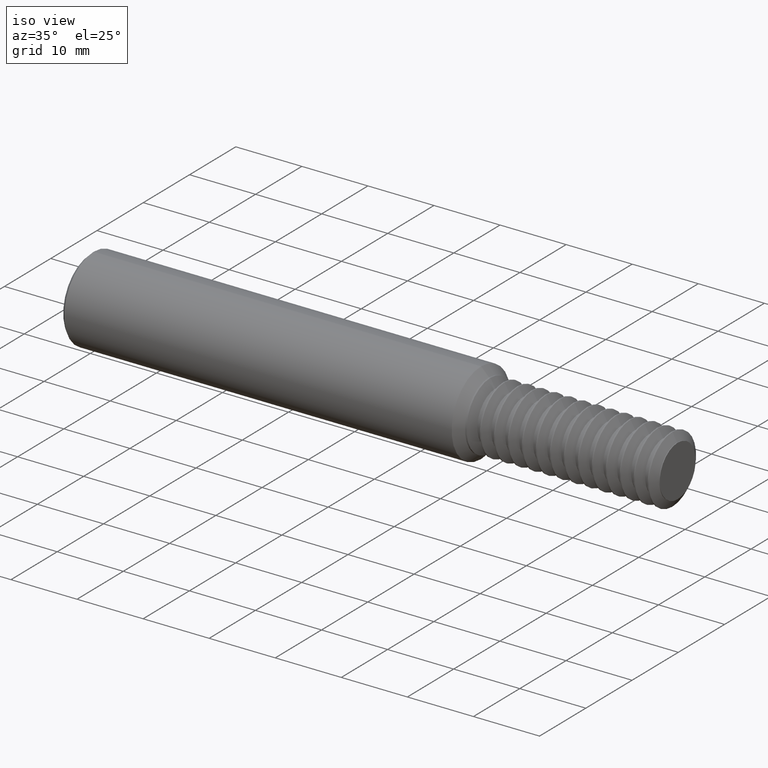
[diagram: clean part render]
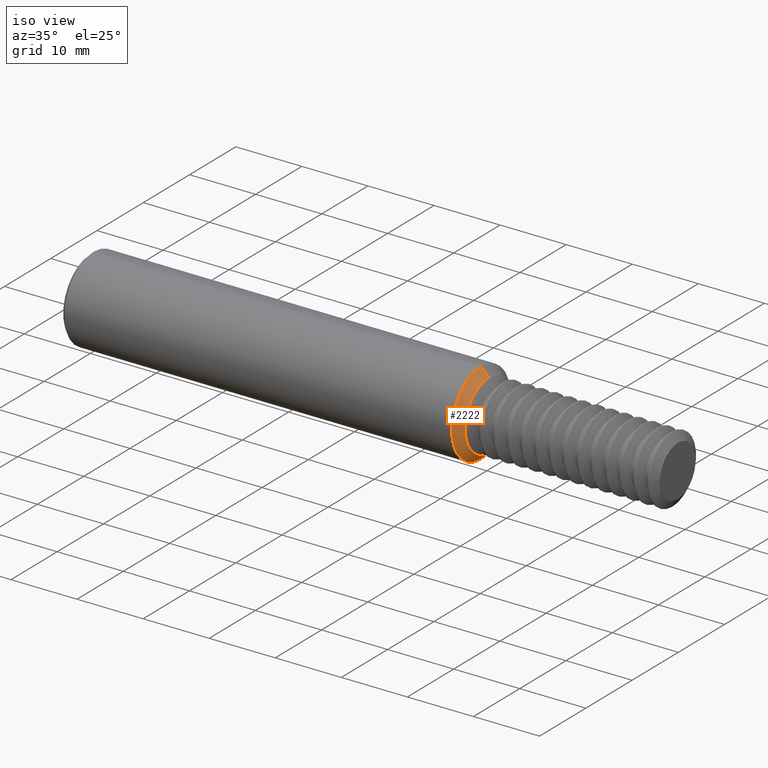
[diagram: same view with one face highlighted and labeled with its STEP entity id]
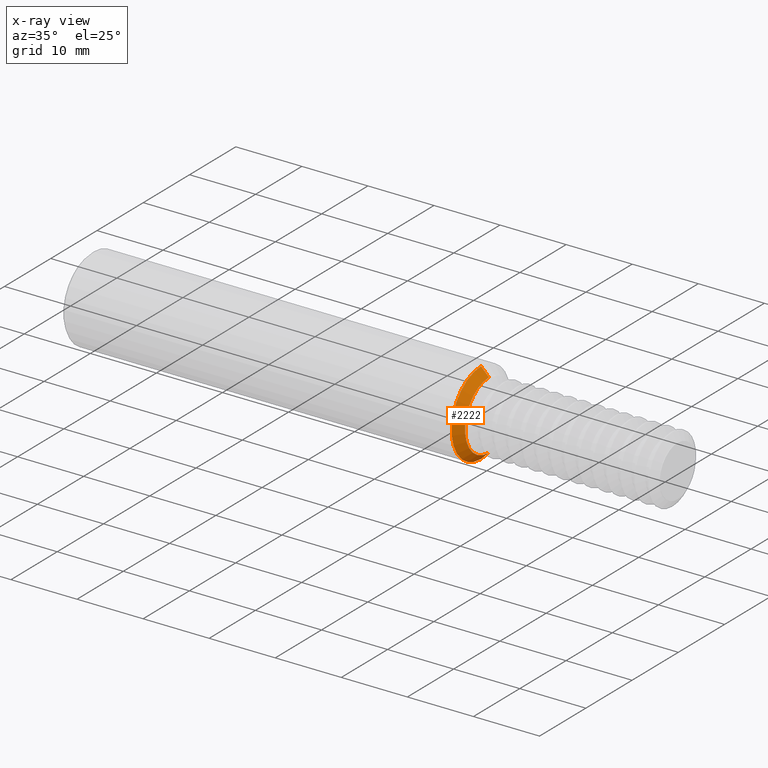
[diagram: x-ray of the same camera — body ghosted, the highlighted face saturated]
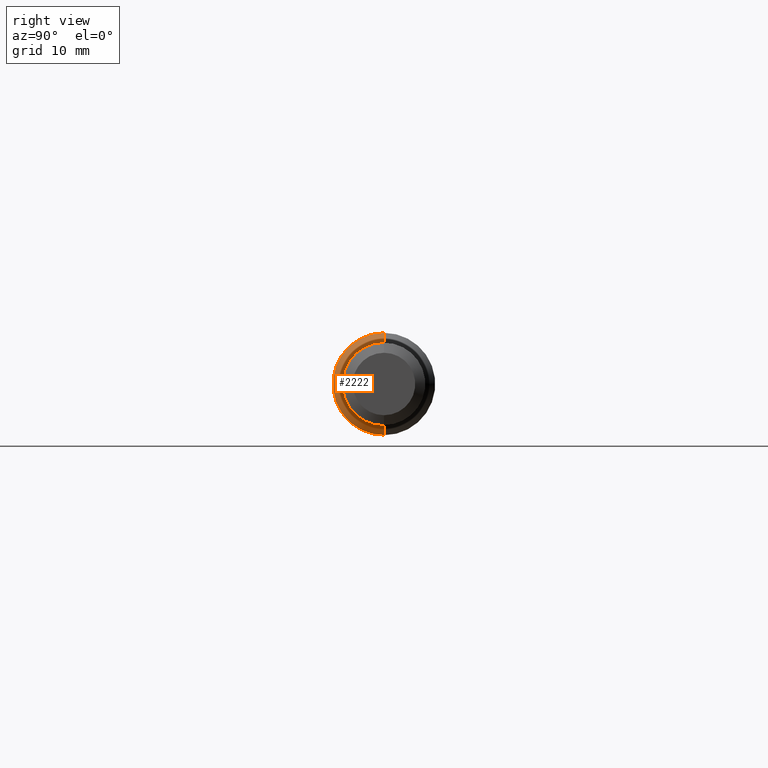
[diagram: same view with one face highlighted and labeled with its STEP entity id]
A machine part, iso view. The second image highlights one B-rep face of the part: STEP entity #2222.
The next image is the same camera in x-ray: the body ghosted, the highlighted face saturated — about 0% of this face is hidden behind the body in this view.
A second angle (right view) of the same face is appended — the face is thin or edge-on in the first view.
In plain terms, the highlighted conical surface has half-angle 45 deg.
Its self-contained STEP definition (entity closure, byte-faithful):
#70 = DIRECTION ( 'NONE',  ( -1.000000000000000000, -0.0000000000000000000, -0.0000000000000000000 ) ) ;
#71 = ORIENTED_EDGE ( 'NONE', *, *, #570, .T. ) ;
#101 = DIRECTION ( 'NONE',  ( -1.000000000000000000, -0.0000000000000000000, -0.0000000000000000000 ) ) ;
#163 = CARTESIAN_POINT ( 'NONE',  ( 2.328149999999999942, 0.0000000000000000000, 0.0000000000000000000 ) ) ;
#310 = CARTESIAN_POINT ( 'NONE',  ( 2.374999999999999556, 2.772906514969394800E-17, -0.2030000000000000138 ) ) ;
#377 = DIRECTION ( 'NONE',  ( -1.000000000000000000, -0.0000000000000000000, -0.0000000000000000000 ) ) ;
#412 = VERTEX_POINT ( 'NONE', #622 ) ;
#423 = CIRCLE ( 'NONE', #1159, 0.2498499999999999888 ) ;
#542 = EDGE_LOOP ( 'NONE', ( #1796, #2475, #71, #2379 ) ) ;
#544 = VECTOR ( 'NONE', #2988, 39.37007874015748143 ) ;
#570 = EDGE_CURVE ( 'NONE', #2731, #412, #2450, .T. ) ;
#587 = VERTEX_POINT ( 'NONE', #1829 ) ;
#622 = CARTESIAN_POINT ( 'NONE',  ( 2.328149999999999942, 0.0000000000000000000, 0.2498499999999999888 ) ) ;
#655 = CARTESIAN_POINT ( 'NONE',  ( 2.374999999999999556, 2.486033002269127361E-17, -0.2030000000000000138 ) ) ;
#773 = AXIS2_PLACEMENT_3D ( 'NONE', #2151, #70, #1445 ) ;
#852 = CARTESIAN_POINT ( 'NONE',  ( 2.374999999999999556, 0.0000000000000000000, 0.2030000000000000138 ) ) ;
#888 = DIRECTION ( 'NONE',  ( -0.7071067811865462405, 0.0000000000000000000, 0.7071067811865487940 ) ) ;
#934 = CONICAL_SURFACE ( 'NONE', #2136, 0.2030000000000000138, 0.7853981633974501664 ) ;
#1053 = LINE ( 'NONE', #655, #544 ) ;
#1159 = AXIS2_PLACEMENT_3D ( 'NONE', #163, #377, #1991 ) ;
#1438 = EDGE_CURVE ( 'NONE', #2104, #587, #1053, .T. ) ;
#1445 = DIRECTION ( 'NONE',  ( 0.0000000000000000000, 0.0000000000000000000, 1.000000000000000000 ) ) ;
#1449 = VECTOR ( 'NONE', #888, 39.37007874015748143 ) ;
#1617 = FACE_OUTER_BOUND ( 'NONE', #542, .T. ) ;
#1796 = ORIENTED_EDGE ( 'NONE', *, *, #1438, .F. ) ;
#1829 = CARTESIAN_POINT ( 'NONE',  ( 2.328149999999999942, 3.059780027669661931E-17, -0.2498499999999999888 ) ) ;
#1990 = EDGE_CURVE ( 'NONE', #2104, #2731, #2998, .T. ) ;
#1991 = DIRECTION ( 'NONE',  ( 0.0000000000000000000, 0.0000000000000000000, 1.000000000000000000 ) ) ;
#2104 = VERTEX_POINT ( 'NONE', #310 ) ;
#2136 = AXIS2_PLACEMENT_3D ( 'NONE', #2628, #101, #2874 ) ;
#2151 = CARTESIAN_POINT ( 'NONE',  ( 2.374999999999999556, 0.0000000000000000000, 0.0000000000000000000 ) ) ;
#2222 = ADVANCED_FACE ( 'NONE', ( #1617 ), #934, .T. ) ;
#2264 = CARTESIAN_POINT ( 'NONE',  ( 2.374999999999999556, 0.0000000000000000000, 0.2030000000000000138 ) ) ;
#2379 = ORIENTED_EDGE ( 'NONE', *, *, #2721, .F. ) ;
#2450 = LINE ( 'NONE', #2264, #1449 ) ;
#2475 = ORIENTED_EDGE ( 'NONE', *, *, #1990, .T. ) ;
#2628 = CARTESIAN_POINT ( 'NONE',  ( 2.374999999999999556, 0.0000000000000000000, 0.0000000000000000000 ) ) ;
#2721 = EDGE_CURVE ( 'NONE', #587, #412, #423, .T. ) ;
#2731 = VERTEX_POINT ( 'NONE', #852 ) ;
#2874 = DIRECTION ( 'NONE',  ( 0.0000000000000000000, 0.0000000000000000000, 1.000000000000000000 ) ) ;
#2988 = DIRECTION ( 'NONE',  ( -0.7071067811865462405, 8.659560562354948882E-17, -0.7071067811865487940 ) ) ;
#2998 = CIRCLE ( 'NONE', #773, 0.2030000000000000138 ) ;